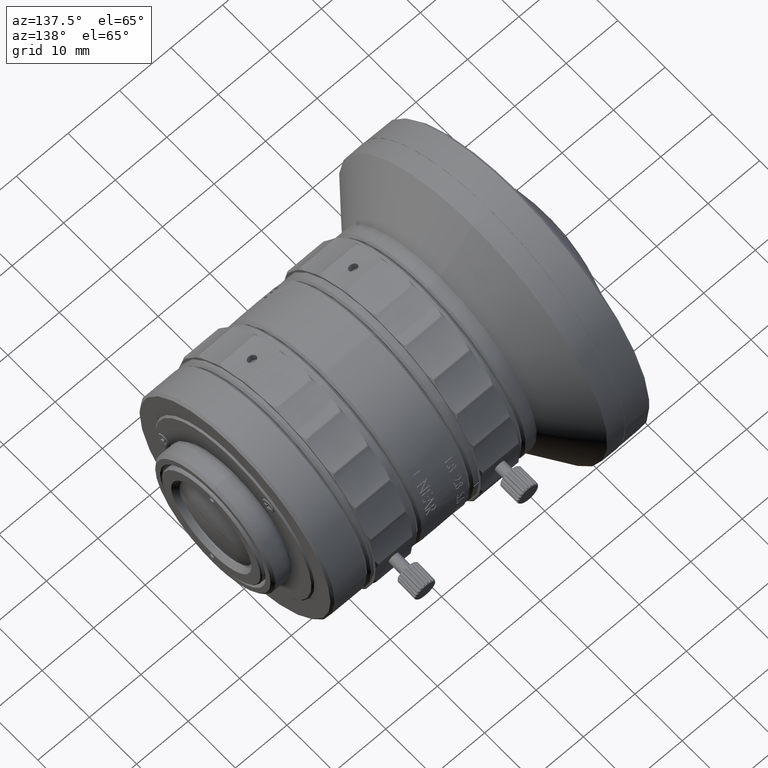
[diagram: clean part render]
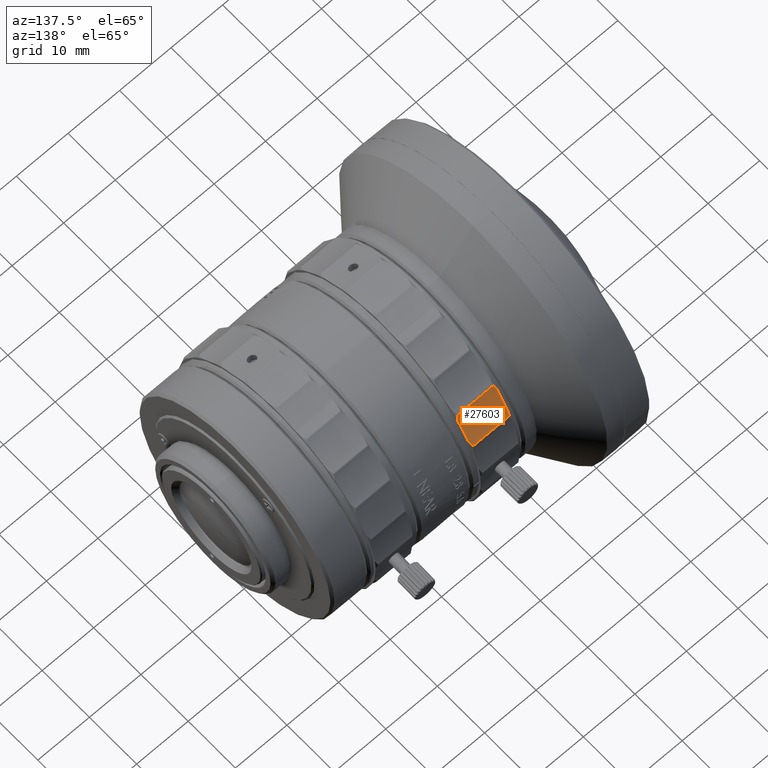
[diagram: same view with one face highlighted and labeled with its STEP entity id]
A machine part, auxiliary view. The second image highlights one B-rep face of the part: STEP entity #27603.
In plain terms, the highlighted face is a freeform B-spline surface patch.
Its self-contained STEP definition (entity closure, byte-faithful):
#1164 = CARTESIAN_POINT ( 'NONE',  ( 23.24000000000000199, 15.64566742131927590, 14.30118171825096951 ) ) ;
#1842 =( BOUNDED_SURFACE ( )  B_SPLINE_SURFACE ( 1, 3, ( 
 ( #12502, #12120, #48075, #36332 ),
 ( #1164, #49227, #73120, #42988 ) ),
 .UNSPECIFIED., .F., .F., .F. ) 
 B_SPLINE_SURFACE_WITH_KNOTS ( ( 2, 2 ),
 ( 4, 4 ),
 ( 0.000000000000000000, 1.000000000000000000 ),
 ( 0.000000000000000000, 1.000000000000000000 ),
 .UNSPECIFIED. ) 
 GEOMETRIC_REPRESENTATION_ITEM ( )  RATIONAL_B_SPLINE_SURFACE ( (
 ( 1.000000000000000000, 0.9901133103468570118, 0.9901133103468570118, 1.000000000000000000),
 ( 1.000000000000000000, 0.9901133103468570118, 0.9901133103468570118, 1.000000000000000000) ) ) 
 REPRESENTATION_ITEM ( '' )  SURFACE ( )  );
#2487 = EDGE_CURVE ( 'NONE', #30528, #53157, #75879, .T. ) ;
#3942 = CARTESIAN_POINT ( 'NONE',  ( 15.74000000000000021, 16.69721403440835417, 12.22478836053567441 ) ) ;
#6969 = CARTESIAN_POINT ( 'NONE',  ( 23.17284216499999872, 18.59727697875782937, 9.795617929535051616 ) ) ;
#7077 = ORIENTED_EDGE ( 'NONE', *, *, #36125, .T. ) ;
#10029 = CARTESIAN_POINT ( 'NONE',  ( 15.88947464500000173, 15.77584221793792274, 14.01429207396696164 ) ) ;
#10668 = B_SPLINE_CURVE_WITH_KNOTS ( 'NONE', 1,
 ( #12027, #36242 ),
 .UNSPECIFIED., .F., .F.,
 ( 2, 2 ),
 ( -1.000000000000000000, 0.000000000000000000 ),
 .UNSPECIFIED. ) ;
#11713 = ORIENTED_EDGE ( 'NONE', *, *, #76246, .T. ) ;
#12027 = CARTESIAN_POINT ( 'NONE',  ( 22.99304956898165031, 19.02859879715379776, 9.339332705310098959 ) ) ;
#12120 = CARTESIAN_POINT ( 'NONE',  ( 15.74000000000000021, 16.48106067284238563, 12.46007515237065988 ) ) ;
#12502 = CARTESIAN_POINT ( 'NONE',  ( 15.74000000000000021, 15.64566742131927590, 14.30118171825096951 ) ) ;
#14609 = CARTESIAN_POINT ( 'NONE',  ( 23.23999999999999844, 17.48098872187382824, 11.07554675299765634 ) ) ;
#16162 = EDGE_LOOP ( 'NONE', ( #19037, #63050, #7077, #74370, #33314, #29597, #11713, #40616 ) ) ;
#18322 = CARTESIAN_POINT ( 'NONE',  ( 23.24000000000000199, 18.39317037784254794, 10.02964523101856109 ) ) ;
#19037 = ORIENTED_EDGE ( 'NONE', *, *, #45295, .T. ) ;
#20263 = B_SPLINE_CURVE_WITH_KNOTS ( 'NONE', 3,
 ( #18322, #6969, #42152, #48404 ),
 .UNSPECIFIED., .F., .F.,
 ( 4, 4 ),
 ( -0.0009701985210478440008, 0.000000000000000000 ),
 .UNSPECIFIED. ) ;
#22142 = CARTESIAN_POINT ( 'NONE',  ( 15.80715783500000171, 15.91283180328481528, 13.73297584903069612 ) ) ;
#23106 = CARTESIAN_POINT ( 'NONE',  ( 15.80715783500000171, 18.59727697875782937, 9.795617929535051616 ) ) ;
#24623 = CARTESIAN_POINT ( 'NONE',  ( 22.99304956852270365, 15.64566742057689908, 14.30118171935493976 ) ) ;
#25846 = VERTEX_POINT ( 'NONE', #44087 ) ;
#25973 = CARTESIAN_POINT ( 'NONE',  ( 22.99304956898165031, 19.02859879715379776, 9.339332705310098959 ) ) ;
#27090 = CARTESIAN_POINT ( 'NONE',  ( 23.24000000000000199, 16.05611316000829802, 13.45747859782970046 ) ) ;
#27603 = ADVANCED_FACE ( 'NONE', ( #30859 ), #1842, .T. ) ;
#28269 = CARTESIAN_POINT ( 'NONE',  ( 15.98695043054735088, 15.64566742332684868, 14.30118171504173930 ) ) ;
#28576 = CARTESIAN_POINT ( 'NONE',  ( 23.24000000000000199, 16.05611316000829802, 13.45747859782970046 ) ) ;
#28948 = CARTESIAN_POINT ( 'NONE',  ( 15.98695043036375196, 19.02859879524000064, 9.339332708129099103 ) ) ;
#29597 = ORIENTED_EDGE ( 'NONE', *, *, #42543, .T. ) ;
#30528 = VERTEX_POINT ( 'NONE', #54974 ) ;
#30859 = FACE_OUTER_BOUND ( 'NONE', #16162, .T. ) ;
#31556 = CARTESIAN_POINT ( 'NONE',  ( 15.74000000009180233, 16.05611315823849949, 13.45747860008409802 ) ) ;
#32169 = VERTEX_POINT ( 'NONE', #67224 ) ;
#33314 = ORIENTED_EDGE ( 'NONE', *, *, #70488, .T. ) ;
#36125 = EDGE_CURVE ( 'NONE', #75994, #53157, #59087, .T. ) ;
#36242 = CARTESIAN_POINT ( 'NONE',  ( 15.98695043036375196, 19.02859879524000064, 9.339332708129099103 ) ) ;
#36332 = CARTESIAN_POINT ( 'NONE',  ( 15.74000000000000021, 19.02859879719656178, 9.339332705419590042 ) ) ;
#36725 = EDGE_CURVE ( 'NONE', #51914, #75994, #55203, .T. ) ;
#38429 = CARTESIAN_POINT ( 'NONE',  ( 23.23999999999999844, 16.69645808373995877, 12.22624191223891899 ) ) ;
#39593 = CARTESIAN_POINT ( 'NONE',  ( 22.99304956852270365, 15.64566742057689908, 14.30118171935493976 ) ) ;
#40616 = ORIENTED_EDGE ( 'NONE', *, *, #75246, .T. ) ;
#40709 = B_SPLINE_CURVE_WITH_KNOTS ( 'NONE', 3,
 ( #28948, #52811, #23106, #45780 ),
 .UNSPECIFIED., .F., .F.,
 ( 4, 4 ),
 ( -0.0009701985158618949999, 0.000000000000000000 ),
 .UNSPECIFIED. ) ;
#42008 = B_SPLINE_CURVE_WITH_KNOTS ( 'NONE', 3,
 ( #31556, #22142, #10029, #58090 ),
 .UNSPECIFIED., .F., .F.,
 ( 4, 4 ),
 ( -0.0009701985168632900388, 0.000000000000000000 ),
 .UNSPECIFIED. ) ;
#42152 = CARTESIAN_POINT ( 'NONE',  ( 23.09052535500000047, 18.80909895214899308, 9.565321562879869788 ) ) ;
#42543 = EDGE_CURVE ( 'NONE', #73386, #25846, #10668, .T. ) ;
#42988 = CARTESIAN_POINT ( 'NONE',  ( 23.24000000000000199, 19.02859879719656178, 9.339332705419590042 ) ) ;
#44087 = CARTESIAN_POINT ( 'NONE',  ( 15.98695043036375196, 19.02859879524000064, 9.339332708129099103 ) ) ;
#45295 = EDGE_CURVE ( 'NONE', #62198, #51914, #42008, .T. ) ;
#45767 = CARTESIAN_POINT ( 'NONE',  ( 15.74000000000000021, 18.39317037981435021, 10.02964522740249897 ) ) ;
#45780 = CARTESIAN_POINT ( 'NONE',  ( 15.74000000000000021, 18.39317037981435021, 10.02964522740249897 ) ) ;
#46652 = CARTESIAN_POINT ( 'NONE',  ( 22.99304956852270365, 15.64566742057689908, 14.30118171935493976 ) ) ;
#48075 = CARTESIAN_POINT ( 'NONE',  ( 15.74000000000000021, 17.61996445302089498, 10.78961011199625553 ) ) ;
#48404 = CARTESIAN_POINT ( 'NONE',  ( 22.99304956898165031, 19.02859879715379776, 9.339332705310098959 ) ) ;
#49227 = CARTESIAN_POINT ( 'NONE',  ( 23.23999999999999844, 16.48106067284238563, 12.46007515237065988 ) ) ;
#51242 = CARTESIAN_POINT ( 'NONE',  ( 15.74000000000000021, 17.47991184567306888, 11.07678151952726431 ) ) ;
#51914 = VERTEX_POINT ( 'NONE', #69633 ) ;
#52811 = CARTESIAN_POINT ( 'NONE',  ( 15.88947464500000173, 18.80909895214899308, 9.565321562879869788 ) ) ;
#53157 = VERTEX_POINT ( 'NONE', #28576 ) ;
#54725 = CARTESIAN_POINT ( 'NONE',  ( 23.24000000000000199, 16.05611316000829802, 13.45747859782970046 ) ) ;
#54974 = CARTESIAN_POINT ( 'NONE',  ( 23.24000000000000199, 18.39317037784254794, 10.02964523101856109 ) ) ;
#55203 = B_SPLINE_CURVE_WITH_KNOTS ( 'NONE', 1,
 ( #28269, #39593 ),
 .UNSPECIFIED., .F., .F.,
 ( 2, 2 ),
 ( -1.000000000000000000, 0.000000000000000000 ),
 .UNSPECIFIED. ) ;
#58090 = CARTESIAN_POINT ( 'NONE',  ( 15.98695043054735088, 15.64566742332684868, 14.30118171504173930 ) ) ;
#59087 = B_SPLINE_CURVE_WITH_KNOTS ( 'NONE', 3,
 ( #24623, #60975, #72338, #54725 ),
 .UNSPECIFIED., .F., .F.,
 ( 4, 4 ),
 ( -0.0009701985273043799802, 0.000000000000000000 ),
 .UNSPECIFIED. ) ;
#60975 = CARTESIAN_POINT ( 'NONE',  ( 23.09052535500000047, 15.77584221793792274, 14.01429207396696164 ) ) ;
#62198 = VERTEX_POINT ( 'NONE', #71698 ) ;
#63050 = ORIENTED_EDGE ( 'NONE', *, *, #36725, .T. ) ;
#67224 = CARTESIAN_POINT ( 'NONE',  ( 15.74000000000000021, 18.39317037981435021, 10.02964522740249897 ) ) ;
#69222 = CARTESIAN_POINT ( 'NONE',  ( 15.74000000009180233, 16.05611315823849949, 13.45747860008409802 ) ) ;
#69633 = CARTESIAN_POINT ( 'NONE',  ( 15.98695043054735088, 15.64566742332684868, 14.30118171504173930 ) ) ;
#69720 = CARTESIAN_POINT ( 'NONE',  ( 23.24000000000000199, 18.39317037784254794, 10.02964523101856109 ) ) ;
#70386 =( BOUNDED_CURVE ( )  B_SPLINE_CURVE ( 3, ( #45767, #51242, #3942, #69222 ),
 .UNSPECIFIED., .F., .F. ) 
 B_SPLINE_CURVE_WITH_KNOTS ( ( 4, 4 ),
 ( -0.2376284155829355149, 0.000000000000000000 ),
 .UNSPECIFIED. ) 
 CURVE ( )  GEOMETRIC_REPRESENTATION_ITEM ( )  RATIONAL_B_SPLINE_CURVE ( ( 1.000000000000000000, 0.9952999277353008489, 0.9952999277353008489, 1.000000000000000000 ) ) 
 REPRESENTATION_ITEM ( '' )  );
#70488 = EDGE_CURVE ( 'NONE', #30528, #73386, #20263, .T. ) ;
#71698 = CARTESIAN_POINT ( 'NONE',  ( 15.74000000009180233, 16.05611315823849949, 13.45747860008409802 ) ) ;
#72338 = CARTESIAN_POINT ( 'NONE',  ( 23.17284216499999872, 15.91283180328481528, 13.73297584903069612 ) ) ;
#73120 = CARTESIAN_POINT ( 'NONE',  ( 23.23999999999999844, 17.61996445302089498, 10.78961011199625553 ) ) ;
#73386 = VERTEX_POINT ( 'NONE', #25973 ) ;
#74370 = ORIENTED_EDGE ( 'NONE', *, *, #2487, .F. ) ;
#75246 = EDGE_CURVE ( 'NONE', #32169, #62198, #70386, .T. ) ;
#75879 = B_SPLINE_CURVE_WITH_KNOTS ( 'NONE', 3,
 ( #69720, #14609, #38429, #27090 ),
 .UNSPECIFIED., .F., .F.,
 ( 4, 4 ),
 ( 0.000000000000000000, 0.2376284155273979959 ),
 .UNSPECIFIED. ) ;
#75994 = VERTEX_POINT ( 'NONE', #46652 ) ;
#76246 = EDGE_CURVE ( 'NONE', #25846, #32169, #40709, .T. ) ;